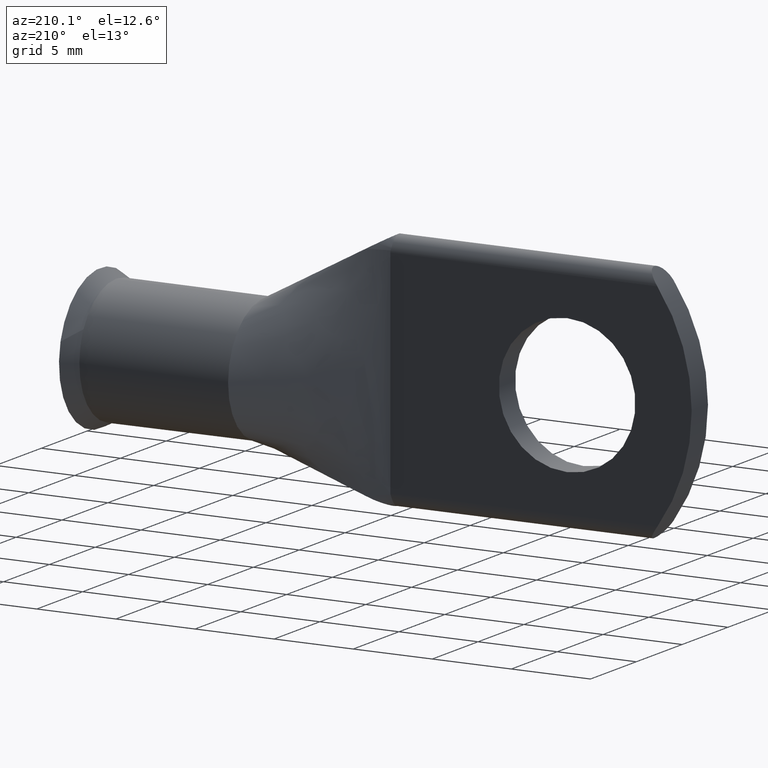
[diagram: clean part render]
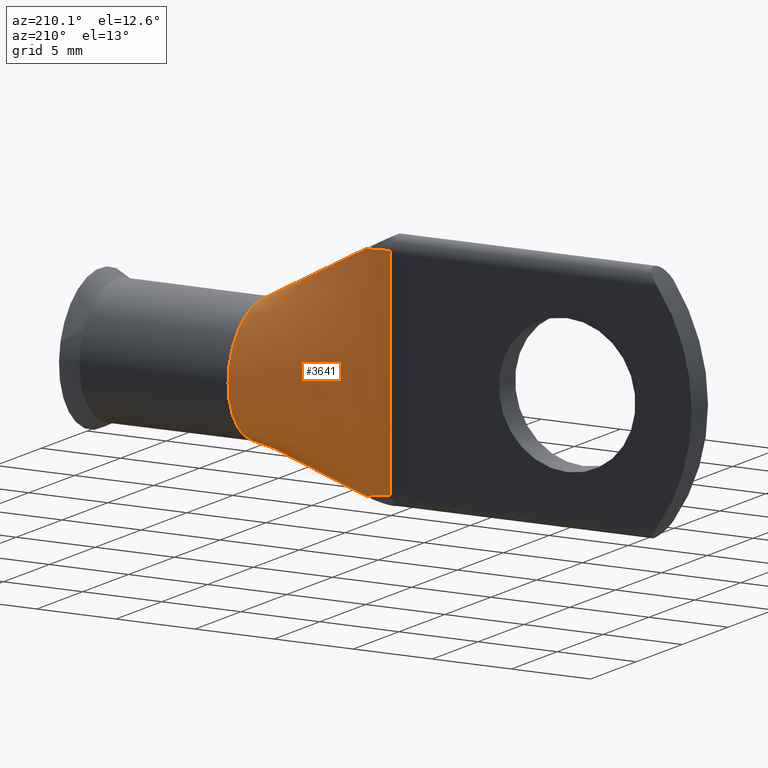
[diagram: same view with one face highlighted and labeled with its STEP entity id]
A machine part, auxiliary view. The second image highlights one B-rep face of the part: STEP entity #3641.
In plain terms, the highlighted face is a freeform B-spline surface patch.
Its self-contained STEP definition (entity closure, byte-faithful):
#12 = CARTESIAN_POINT ( 'NONE',  ( 0.3750000000000001665, 0.03500000000000001027, 0.1750000000000000444 ) ) ;
#15 = ORIENTED_EDGE ( 'NONE', *, *, #964, .T. ) ;
#18 = LINE ( 'NONE', #961, #1896 ) ;
#36 = CARTESIAN_POINT ( 'NONE',  ( 0.3744285130138348960, 0.03468951346466594976, 0.2696516293471368231 ) ) ;
#58 = CARTESIAN_POINT ( 'NONE',  ( 0.3609719128571314828, 0.02757367847859397078, 0.2816567873192118432 ) ) ;
#79 = CARTESIAN_POINT ( 'NONE',  ( 0.3084508794189604330, -0.03344822935351599025, 0.01271493715137337992 ) ) ;
#100 = CARTESIAN_POINT ( 'NONE',  ( 0.6392711925235872172, 0.2814297126761332590, -0.08637188970711148772 ) ) ;
#122 = CARTESIAN_POINT ( 'NONE',  ( 0.6392711925235874393, 0.2372876529877564478, -0.1280733142503861777 ) ) ;
#143 = CARTESIAN_POINT ( 'NONE',  ( 0.3084508794189604886, -0.03310227376827960810, -0.02543079323379219409 ) ) ;
#162 = CARTESIAN_POINT ( 'NONE',  ( 0.3084508794189604886, -0.03176800530091998531, 0.05108427151023640922 ) ) ;
#221 = CARTESIAN_POINT ( 'NONE',  ( 0.6392711925235874393, 0.1554980174777232382, -0.1502651285289114125 ) ) ;
#250 = CARTESIAN_POINT ( 'NONE',  ( 0.3750000000000001665, 0.03500000000000000333, 2.954160186844080923E-17 ) ) ;
#293 = CARTESIAN_POINT ( 'NONE',  ( 0.3609719128571314828, 0.02678284274586828842, 0.2554520356508898637 ) ) ;
#297 = ORIENTED_EDGE ( 'NONE', *, *, #2602, .F. ) ;
#318 = CARTESIAN_POINT ( 'NONE',  ( 0.6280315000000000758, 0.2286841763878710576, 0.1300691485823086413 ) ) ;
#342 = CARTESIAN_POINT ( 'NONE',  ( 0.4226147237752842512, 0.05777007477007943537, -0.2729851026177172457 ) ) ;
#346 = ORIENTED_EDGE ( 'NONE', *, *, #780, .T. ) ;
#408 = CARTESIAN_POINT ( 'NONE',  ( 0.6392711925235875503, 0.3054388719967351395, 0.02328929006677587024 ) ) ;
#431 = CARTESIAN_POINT ( 'NONE',  ( 0.3750000000000001110, 0.03500000000000000333, -0.02500000000000011241 ) ) ;
#452 = CARTESIAN_POINT ( 'NONE',  ( 0.6392711925235875503, 0.3001403989900729985, 0.04569428232067163781 ) ) ;
#470 = CARTESIAN_POINT ( 'NONE',  ( 0.6280315000000000758, 0.2952522466780524990, -0.01168277102172157397 ) ) ;
#490 = CARTESIAN_POINT ( 'NONE',  ( 0.3084508794189604886, -0.03310227376827958728, 0.02543079323379195122 ) ) ;
#528 = CARTESIAN_POINT ( 'NONE',  ( 0.6280314999999999648, 0.2130710006266590684, -0.1392643481345596790 ) ) ;
#546 = CARTESIAN_POINT ( 'NONE',  ( 0.3084508794189604886, -0.01183396530744161221, -0.2159739171587776729 ) ) ;
#564 = CARTESIAN_POINT ( 'NONE',  ( 0.3609719128571314273, 0.02875977725851826261, -0.3251140068592723864 ) ) ;
#586 = CARTESIAN_POINT ( 'NONE',  ( 0.6280315000000000758, 0.1560034568587806980, -0.1564389444062407319 ) ) ;
#613 = CARTESIAN_POINT ( 'NONE',  ( 0.6280315000000000758, 0.1560034568587806425, 0.1564389444062407319 ) ) ;
#634 = CARTESIAN_POINT ( 'NONE',  ( 0.6392711925235874393, 0.1749023847327069170, 0.1495946539034521960 ) ) ;
#655 = CARTESIAN_POINT ( 'NONE',  ( 0.3750000000000001665, 0.03500000000000000333, 0.3163056098330738197 ) ) ;
#696 = CARTESIAN_POINT ( 'NONE',  ( 0.3750000000000001665, 0.03500000000000000333, 0.3054352032776913584 ) ) ;
#718 = CARTESIAN_POINT ( 'NONE',  ( 0.3750000000000001110, 0.03500000000000001027, 0.09999999999999999167 ) ) ;
#744 = CARTESIAN_POINT ( 'NONE',  ( 0.3750000000000001110, 0.03500000000000000333, -0.05000000000000007910 ) ) ;
#766 = CARTESIAN_POINT ( 'NONE',  ( 0.6392711925235874393, 0.3001403989900729985, -0.04569428232067161005 ) ) ;
#780 = EDGE_CURVE ( 'NONE', #3628, #3214, #1439, .T. ) ;
#791 = CARTESIAN_POINT ( 'NONE',  ( 0.3084508794189604886, -0.03176800530091998531, -0.05108427151023654800 ) ) ;
#809 = CARTESIAN_POINT ( 'NONE',  ( 0.3084508794189604886, -0.02705625557227996428, -0.1034318487252151864 ) ) ;
#819 = DIRECTION ( 'NONE',  ( 0.000000000000000000, 0.000000000000000000, -1.000000000000000000 ) ) ;
#829 = CARTESIAN_POINT ( 'NONE',  ( 0.3609719128571314273, 0.02860370431003544586, -0.3193956834773739595 ) ) ;
#836 = VERTEX_POINT ( 'NONE', #3655 ) ;
#932 = CARTESIAN_POINT ( 'NONE',  ( 0.3750000000000001110, 0.03500000000000000333, -0.2665889140773575749 ) ) ;
#956 = CARTESIAN_POINT ( 'NONE',  ( 0.6280314999999999648, 0.2130710006266591794, 0.1392643481345597067 ) ) ;
#961 = CARTESIAN_POINT ( 'NONE',  ( 0.5015157500000001489, 0.09550172842939032292, 0.2282194722031203882 ) ) ;
#964 = EDGE_CURVE ( 'NONE', #3383, #3628, #1702, .T. ) ;
#976 = CARTESIAN_POINT ( 'NONE',  ( 0.3750000000000001665, 0.03500000000000000333, -0.2649999999999999578 ) ) ;
#979 = ORIENTED_EDGE ( 'NONE', *, *, #2973, .T. ) ;
#1021 = CARTESIAN_POINT ( 'NONE',  ( 0.3084508794189605996, 0.004656030033588488132, 0.3513142396968123027 ) ) ;
#1045 = CARTESIAN_POINT ( 'NONE',  ( 0.3084508794189604330, -0.03344822935351599719, -0.01271493715137369737 ) ) ;
#1064 = CARTESIAN_POINT ( 'NONE',  ( 0.3084508794189604886, -0.03078077872360815426, 0.06402329472265844146 ) ) ;
#1086 = CARTESIAN_POINT ( 'NONE',  ( 0.6280315000000000758, 0.1560046757007648444, 0.1564496264679147985 ) ) ;
#1090 = CARTESIAN_POINT ( 'NONE',  ( 0.3750000000000001110, 0.03500000000000000333, -0.1000000000000000749 ) ) ;
#1112 = CARTESIAN_POINT ( 'NONE',  ( 0.6280315000000000758, 0.2888637383303467865, -0.04587740838275537747 ) ) ;
#1130 = CARTESIAN_POINT ( 'NONE',  ( 0.3609719128571314273, 0.02191897724075868650, -0.1007234096041861315 ) ) ;
#1170 = CARTESIAN_POINT ( 'NONE',  ( 0.3084508794189604886, 0.004656030162328464277, -0.3513142408754055257 ) ) ;
#1172 = VERTEX_POINT ( 'NONE', #1086 ) ;
#1179 = DIRECTION ( 'NONE',  ( -0.000000000000000000, 0.000000000000000000, 1.000000000000000000 ) ) ;
#1191 = CARTESIAN_POINT ( 'NONE',  ( 0.3750000000000001110, 0.03500000000000000333, -0.3054352037502193751 ) ) ;
#1212 = CARTESIAN_POINT ( 'NONE',  ( 0.6392711925235874393, 0.1749023847327069447, -0.1495946539034522238 ) ) ;
#1232 = CARTESIAN_POINT ( 'NONE',  ( 0.3609719128571314273, 0.02757367847859396731, -0.2816567873192117322 ) ) ;
#1274 = CARTESIAN_POINT ( 'NONE',  ( 0.3744285130138731432, 0.03468951346468684277, -0.2696516293471389880 ) ) ;
#1281 = CARTESIAN_POINT ( 'NONE',  ( 0.3084508794189605996, 0.005396438648052643595, 0.3580925598711649505 ) ) ;
#1327 = CARTESIAN_POINT ( 'NONE',  ( 0.3084508794189605996, 0.003915621419124354352, 0.3445359195224593774 ) ) ;
#1347 = FACE_OUTER_BOUND ( 'NONE', #4101, .T. ) ;
#1368 = CARTESIAN_POINT ( 'NONE',  ( 0.6280315000000000758, 0.1832169026021350233, 0.1516589543001644891 ) ) ;
#1392 = CARTESIAN_POINT ( 'NONE',  ( 0.6280315000000002978, 0.2939368624941375852, 0.02336204810545149460 ) ) ;
#1415 = CARTESIAN_POINT ( 'NONE',  ( 0.3750000000000001110, 0.03500000000000001027, 0.1250000000000000278 ) ) ;
#1435 = CARTESIAN_POINT ( 'NONE',  ( 0.6392711925235874393, 0.2675538943265995950, -0.1030268511502715340 ) ) ;
#1439 = B_SPLINE_CURVE_WITH_KNOTS ( 'NONE', 3,
 ( #2756, #2069, #1824, #1499 ),
 .UNSPECIFIED., .F., .F.,
 ( 4, 4 ),
 ( 7.739641984483123459E-15, 0.001359727221975469934 ),
 .UNSPECIFIED. ) ;
#1454 = CARTESIAN_POINT ( 'NONE',  ( 0.6280315000000002978, 0.2888637383303467865, 0.04587740838275539829 ) ) ;
#1471 = CARTESIAN_POINT ( 'NONE',  ( 0.3609719128571313718, 0.02057159406822045219, 0.01254530724167914751 ) ) ;
#1491 = CARTESIAN_POINT ( 'NONE',  ( 0.3084508794189604886, -0.0002304032166537372237, -0.3065797398089135095 ) ) ;
#1499 = CARTESIAN_POINT ( 'NONE',  ( 0.4226147237754311337, 0.05777007477014962922, 0.2729851026176340900 ) ) ;
#1507 = CARTESIAN_POINT ( 'NONE',  ( 0.6280315000000000758, 0.1475579635006703805, -0.1574242519646869565 ) ) ;
#1527 = CARTESIAN_POINT ( 'NONE',  ( 0.3084508794189604886, 0.003915621483494333317, -0.3445359201117559333 ) ) ;
#1546 = CARTESIAN_POINT ( 'NONE',  ( 0.3750000000000001110, 0.03500000000000000333, -0.2500000000000000555 ) ) ;
#1568 = CARTESIAN_POINT ( 'NONE',  ( 0.3744285130138731432, 0.03468951346468684277, -0.2696516293471389880 ) ) ;
#1599 = CARTESIAN_POINT ( 'NONE',  ( 0.3084508794189605996, -0.003982120895689612340, 0.2758644086145159990 ) ) ;
#1647 = CARTESIAN_POINT ( 'NONE',  ( 0.3084508794189605996, -0.0002304032166537329682, 0.3065797398089135650 ) ) ;
#1688 = CARTESIAN_POINT ( 'NONE',  ( 0.3609719128571314828, 0.02829155841306981237, 0.3079590367135771611 ) ) ;
#1702 = B_SPLINE_CURVE_WITH_KNOTS ( 'NONE', 3,
 ( #2019, #3672, #3354, #1976 ),
 .UNSPECIFIED., .F., .F.,
 ( 4, 4 ),
 ( 3.778891758601221387E-17, 0.0001192222543883162029 ),
 .UNSPECIFIED. ) ;
#1712 = CARTESIAN_POINT ( 'NONE',  ( 0.3084508794189604886, -0.02356202867722666586, 0.1305333073513685882 ) ) ;
#1733 = CARTESIAN_POINT ( 'NONE',  ( 0.3750000000000001110, 0.03500000000000000333, -0.06250000000000008327 ) ) ;
#1752 = CARTESIAN_POINT ( 'NONE',  ( 0.3750000000000001110, 0.03500000000000000333, 0.02499999999999993547 ) ) ;
#1775 = CARTESIAN_POINT ( 'NONE',  ( 0.3609719128571314273, 0.02064451907541642664, -0.02509080818756788747 ) ) ;
#1793 = CARTESIAN_POINT ( 'NONE',  ( 0.6280314999999999648, 0.2576631671442923266, 0.1039613890183137684 ) ) ;
#1812 = CARTESIAN_POINT ( 'NONE',  ( 0.6280314999999999648, 0.1832169026021350511, -0.1516589543001644891 ) ) ;
#1824 = CARTESIAN_POINT ( 'NONE',  ( 0.4061018987848284967, 0.05114175158601189097, 0.2716408433011661683 ) ) ;
#1834 = CARTESIAN_POINT ( 'NONE',  ( 0.3084508794189604886, 0.005396438841162594369, -0.3580925616390548405 ) ) ;
#1894 = CARTESIAN_POINT ( 'NONE',  ( 0.3084508794189604886, -0.003982120895689621014, -0.2758644086145159990 ) ) ;
#1896 = VECTOR ( 'NONE', #3958, 39.37007874015748143 ) ;
#1946 = CARTESIAN_POINT ( 'NONE',  ( 0.3084508794189605996, -0.01183396530744164690, 0.2159739171587776729 ) ) ;
#1968 = CARTESIAN_POINT ( 'NONE',  ( 0.6392711925235874393, 0.1554980179889585701, 0.1502651285112468205 ) ) ;
#1973 = CARTESIAN_POINT ( 'NONE',  ( 0.4226147237754311337, 0.05777007477014962922, 0.2729851026176340900 ) ) ;
#1976 = CARTESIAN_POINT ( 'NONE',  ( 0.3744285130138348960, 0.03468951346466594976, 0.2696516293471368231 ) ) ;
#1988 = CARTESIAN_POINT ( 'NONE',  ( 0.6392711925235874393, 0.1525578038164677463, 0.1503667210532847187 ) ) ;
#2006 = DIRECTION ( 'NONE',  ( -0.8030660101565660902, -0.3840382059733004616, -0.4556310345927094274 ) ) ;
#2011 = CARTESIAN_POINT ( 'NONE',  ( 0.3609719128571314828, 0.02844763134798388923, 0.3136773595983334273 ) ) ;
#2014 = ORIENTED_EDGE ( 'NONE', *, *, #3182, .T. ) ;
#2019 = CARTESIAN_POINT ( 'NONE',  ( 0.3750000000000001665, 0.03500000000000000333, 0.2650000000000000133 ) ) ;
#2031 = CARTESIAN_POINT ( 'NONE',  ( 0.6280315000000000758, 0.2851101286730578499, 0.05670816465715749349 ) ) ;
#2056 = CARTESIAN_POINT ( 'NONE',  ( 0.3609719128571314273, 0.02092577349574057874, -0.05022855681787125048 ) ) ;
#2069 = CARTESIAN_POINT ( 'NONE',  ( 0.3901049120790470726, 0.04321658171745716703, 0.2705663635148192747 ) ) ;
#2077 = CARTESIAN_POINT ( 'NONE',  ( 0.6392711925235874393, 0.2962200534979117506, 0.05645089056914554676 ) ) ;
#2095 = CARTESIAN_POINT ( 'NONE',  ( 0.3609719128571314273, 0.02064451907541643011, 0.02509080818756769665 ) ) ;
#2112 = CARTESIAN_POINT ( 'NONE',  ( 0.6280315000000000758, 0.2576631671442923266, -0.1039613890183137407 ) ) ;
#2130 = CARTESIAN_POINT ( 'NONE',  ( 0.3750000000000001110, 0.03500000000000000333, -0.1750000000000000722 ) ) ;
#2136 = ORIENTED_EDGE ( 'NONE', *, *, #4000, .T. ) ;
#2148 = CARTESIAN_POINT ( 'NONE',  ( 0.6392711925235872172, 0.1898007169179276865, -0.1472906321105786065 ) ) ;
#2166 = CARTESIAN_POINT ( 'NONE',  ( 0.6280315000000000758, 0.1503731279533738197, -0.1570958161118715390 ) ) ;
#2183 = CARTESIAN_POINT ( 'NONE',  ( 0.3609719128571314273, 0.02426213335270982832, -0.1774909700930148160 ) ) ;
#2250 = CARTESIAN_POINT ( 'NONE',  ( 0.3609719128571314828, 0.02512772909930741094, 0.2033671895279731967 ) ) ;
#2290 = CARTESIAN_POINT ( 'NONE',  ( 0.6280315000000000758, 0.1475579642349085230, 0.1574242518790257839 ) ) ;
#2311 = CARTESIAN_POINT ( 'NONE',  ( 0.6392711925235874393, 0.1584382321614494216, 0.1501635359692089222 ) ) ;
#2332 = CARTESIAN_POINT ( 'NONE',  ( 0.6280315000000004089, 0.2939368624941376962, -0.02336204810545148072 ) ) ;
#2351 = CARTESIAN_POINT ( 'NONE',  ( 0.3609719128571314828, 0.02426213335270983179, 0.1774909700930147882 ) ) ;
#2378 = CARTESIAN_POINT ( 'NONE',  ( 0.3750000000000001110, 0.03500000000000000333, -0.1250000000000000555 ) ) ;
#2400 = CARTESIAN_POINT ( 'NONE',  ( 0.3750000000000000555, 0.03500000000000000333, -0.01250000000000013600 ) ) ;
#2423 = CARTESIAN_POINT ( 'NONE',  ( 0.6392711925235872172, 0.2675538943265995395, 0.1030268511502715617 ) ) ;
#2433 = CIRCLE ( 'NONE', #2637, 0.1575000000000000011 ) ;
#2463 = CARTESIAN_POINT ( 'NONE',  ( 0.6392711925235874393, 0.1525578030496146931, -0.1503667210797816067 ) ) ;
#2506 = CARTESIAN_POINT ( 'NONE',  ( 0.6392711925235874393, 0.1613784463339403286, -0.1500619434271710517 ) ) ;
#2525 = CARTESIAN_POINT ( 'NONE',  ( 0.3609719128571314273, 0.02512772909930741094, -0.2033671895279731967 ) ) ;
#2573 = CARTESIAN_POINT ( 'NONE',  ( 0.6392711925235874393, 0.1898007169179276588, 0.1472906321105786065 ) ) ;
#2593 = CARTESIAN_POINT ( 'NONE',  ( 0.3609719128571314828, 0.02860370428289796263, 0.3193956824830897490 ) ) ;
#2602 = EDGE_CURVE ( 'NONE', #4082, #1172, #2433, .T. ) ;
#2612 = CARTESIAN_POINT ( 'NONE',  ( 0.4226147237752842512, 0.05777007477007943537, -0.2729851026177172457 ) ) ;
#2617 = CARTESIAN_POINT ( 'NONE',  ( 0.6392711925235874393, 0.1613784463339402730, 0.1500619434271710240 ) ) ;
#2636 = CARTESIAN_POINT ( 'NONE',  ( 0.3750000000000001665, 0.03500000000000000333, 0.3108704065553826168 ) ) ;
#2637 = AXIS2_PLACEMENT_3D ( 'NONE', #3459, #3404, #819 ) ;
#2641 = ORIENTED_EDGE ( 'NONE', *, *, #3834, .T. ) ;
#2681 = CARTESIAN_POINT ( 'NONE',  ( 0.6392711925235876613, 0.3054388719967352506, -0.02328929006677584596 ) ) ;
#2704 = CARTESIAN_POINT ( 'NONE',  ( 0.6280314999999999648, 0.2709488344059506892, -0.08695150554759295547 ) ) ;
#2727 = CARTESIAN_POINT ( 'NONE',  ( 0.6280315000000000758, 0.2286841763878710021, -0.1300691485823086413 ) ) ;
#2746 = CARTESIAN_POINT ( 'NONE',  ( 0.3609719128571314273, 0.02113387392344527951, -0.06282109982712257013 ) ) ;
#2756 = CARTESIAN_POINT ( 'NONE',  ( 0.3744285130138348960, 0.03468951346466594976, 0.2696516293471368231 ) ) ;
#2766 = CARTESIAN_POINT ( 'NONE',  ( 0.3609719128571314273, 0.02844763136155262565, -0.3136773600954754770 ) ) ;
#2783 = CARTESIAN_POINT ( 'NONE',  ( 0.6392711925235874393, 0.1584382319058317834, -0.1501635359780412460 ) ) ;
#2805 = CARTESIAN_POINT ( 'NONE',  ( 0.3750000000000001110, 0.03500000000000000333, -0.2750000000000000222 ) ) ;
#2823 = LINE ( 'NONE', #3159, #3621 ) ;
#2844 = CARTESIAN_POINT ( 'NONE',  ( 0.3750000000000001110, 0.03500000000000000333, -0.2000000000000000389 ) ) ;
#2895 = CARTESIAN_POINT ( 'NONE',  ( 0.6392711925235872172, 0.2209809379048682798, 0.1365664624871711641 ) ) ;
#2940 = CARTESIAN_POINT ( 'NONE',  ( 0.3750000000000001665, 0.03500000000000001027, 0.2500000000000000555 ) ) ;
#2973 = EDGE_CURVE ( 'NONE', #836, #3383, #4107, .T. ) ;
#2986 = CARTESIAN_POINT ( 'NONE',  ( 0.3750000000000001665, 0.03500000000000000333, 0.2750000000000000777 ) ) ;
#3011 = CARTESIAN_POINT ( 'NONE',  ( 0.3750000000000000555, 0.03500000000000000333, 0.01249999999999988794 ) ) ;
#3034 = CARTESIAN_POINT ( 'NONE',  ( 0.6392711925235874393, 0.3068126857191762480, -0.01164646960297641143 ) ) ;
#3054 = CARTESIAN_POINT ( 'NONE',  ( 0.3084508794189604886, -0.02356202867722669708, -0.1305333073513686437 ) ) ;
#3079 = CARTESIAN_POINT ( 'NONE',  ( 0.6280315000000002978, 0.2851101286730579054, -0.05670816465715747962 ) ) ;
#3100 = CARTESIAN_POINT ( 'NONE',  ( 0.3750000000000001110, 0.03500000000000000333, 0.06249999999999997918 ) ) ;
#3119 = CARTESIAN_POINT ( 'NONE',  ( 0.3609719128571314273, 0.02678284274586828148, -0.2554520356508898637 ) ) ;
#3159 = CARTESIAN_POINT ( 'NONE',  ( 0.5015157500000001489, 0.09550172842939033679, -0.2282194722031203327 ) ) ;
#3179 = B_SPLINE_CURVE_WITH_KNOTS ( 'NONE', 3,
 ( #3259, #3911, #932, #976 ),
 .UNSPECIFIED., .F., .F.,
 ( 4, 4 ),
 ( 0.002797248650388587179, 0.002915338553677062489 ),
 .UNSPECIFIED. ) ;
#3182 = EDGE_CURVE ( 'NONE', #3214, #1172, #18, .T. ) ;
#3199 = VECTOR ( 'NONE', #1179, 39.37007874015748143 ) ;
#3205 = CARTESIAN_POINT ( 'NONE',  ( 0.3750000000000001110, 0.03500000000000000333, -0.2999999999999999334 ) ) ;
#3214 = VERTEX_POINT ( 'NONE', #1973 ) ;
#3259 = CARTESIAN_POINT ( 'NONE',  ( 0.3744285130138731432, 0.03468951346468684277, -0.2696516293471389880 ) ) ;
#3281 = CARTESIAN_POINT ( 'NONE',  ( 0.6280315000000000758, 0.1689522099418170886, 0.1549282565465531503 ) ) ;
#3296 = CARTESIAN_POINT ( 'NONE',  ( 0.6280315000000000758, 0.1560046571253726755, -0.1564494845290497205 ) ) ;
#3324 = CARTESIAN_POINT ( 'NONE',  ( 0.3750000000000001665, 0.03500000000000000333, 0.3000000000000000999 ) ) ;
#3345 = CARTESIAN_POINT ( 'NONE',  ( 0.3084508794189604886, -0.02705625557227995734, 0.1034318487252151031 ) ) ;
#3354 = CARTESIAN_POINT ( 'NONE',  ( 0.3748050896855394942, 0.03489242376998440143, 0.2681384262857243184 ) ) ;
#3370 = CARTESIAN_POINT ( 'NONE',  ( 0.6392711925235875503, 0.2962200534979118061, -0.05645089056914552594 ) ) ;
#3383 = VERTEX_POINT ( 'NONE', #3454 ) ;
#3393 = CARTESIAN_POINT ( 'NONE',  ( 0.3084508794189605996, -0.01594034382705621089, 0.1868171399561111001 ) ) ;
#3404 = DIRECTION ( 'NONE',  ( 1.000000000000000000, 0.000000000000000000, 0.000000000000000000 ) ) ;
#3413 = CARTESIAN_POINT ( 'NONE',  ( 0.3609719128571314273, 0.02191897724075869691, 0.1007234096041860483 ) ) ;
#3430 = CARTESIAN_POINT ( 'NONE',  ( 0.3609719128571314273, 0.02092577349574057874, 0.05022855681787113946 ) ) ;
#3432 = ORIENTED_EDGE ( 'NONE', *, *, #3507, .T. ) ;
#3454 = CARTESIAN_POINT ( 'NONE',  ( 0.3750000000000001665, 0.03500000000000000333, 0.2650000000000000133 ) ) ;
#3459 = CARTESIAN_POINT ( 'NONE',  ( 0.6280315000000000758, 0.1377522466780526089, 0.000000000000000000 ) ) ;
#3507 = EDGE_CURVE ( 'NONE', #3895, #836, #3179, .T. ) ;
#3512 = CARTESIAN_POINT ( 'NONE',  ( 0.3609719128571314273, 0.02829155841306981237, -0.3079590367135769391 ) ) ;
#3522 = VERTEX_POINT ( 'NONE', #342 ) ;
#3561 = CARTESIAN_POINT ( 'NONE',  ( 0.6280315000000000758, 0.1503731284428659054, 0.1570958160547641091 ) ) ;
#3583 = CARTESIAN_POINT ( 'NONE',  ( 0.3084508794189605996, 0.003175212804660220139, 0.3377575993481067296 ) ) ;
#3600 = CARTESIAN_POINT ( 'NONE',  ( 0.3901049120792656200, 0.04321658171757469108, -0.2705663635148321533 ) ) ;
#3620 = CARTESIAN_POINT ( 'NONE',  ( 0.4061018742444573726, 0.05114180893306764092, -0.2716408619831082172 ) ) ;
#3621 = VECTOR ( 'NONE', #2006, 39.37007874015748854 ) ;
#3626 = CARTESIAN_POINT ( 'NONE',  ( 0.3609719128571314828, 0.02875977721781204297, 0.3251140053678460151 ) ) ;
#3628 = VERTEX_POINT ( 'NONE', #36 ) ;
#3641 = ADVANCED_FACE ( 'NONE', ( #1347 ), #3884, .T. ) ;
#3647 = CARTESIAN_POINT ( 'NONE',  ( 0.6280315000000000758, 0.1531882926508232601, 0.1567673802305024344 ) ) ;
#3655 = CARTESIAN_POINT ( 'NONE',  ( 0.3750000000000001665, 0.03500000000000000333, -0.2649999999999999578 ) ) ;
#3663 = CARTESIAN_POINT ( 'NONE',  ( 0.3609719128571314273, 0.02265553572496995655, 0.1261663823208415136 ) ) ;
#3672 = CARTESIAN_POINT ( 'NONE',  ( 0.3750000000000088263, 0.03500000000002224249, 0.2665889140773635146 ) ) ;
#3684 = CARTESIAN_POINT ( 'NONE',  ( 0.3609719128571314273, 0.02113387392344528992, 0.06282109982712245910 ) ) ;
#3706 = CARTESIAN_POINT ( 'NONE',  ( 0.3609719128571314273, 0.02265553572496994267, -0.1261663823208415691 ) ) ;
#3724 = CARTESIAN_POINT ( 'NONE',  ( 0.6392711925235874393, 0.3068126857191762480, 0.01164646960297643051 ) ) ;
#3742 = CARTESIAN_POINT ( 'NONE',  ( 0.6392711925235872172, 0.2814297126761332590, 0.08637188970711150160 ) ) ;
#3763 = CARTESIAN_POINT ( 'NONE',  ( 0.3084508794189604886, 0.003175212804660220139, -0.3377575993481062855 ) ) ;
#3778 = CARTESIAN_POINT ( 'NONE',  ( 0.3750000000000001110, 0.03500000000000000333, -0.3163056112506583140 ) ) ;
#3834 = EDGE_CURVE ( 'NONE', #4082, #3522, #2823, .T. ) ;
#3838 = CARTESIAN_POINT ( 'NONE',  ( 0.6280315000000000758, 0.1531882924060772588, -0.1567673802590561494 ) ) ;
#3884 = B_SPLINE_SURFACE_WITH_KNOTS ( 'NONE', 3, 1, ( 
 ( #1988, #2290, #655, #3626, #1281 ),
 ( #1968, #3561, #2636, #2593, #1021 ),
 ( #2311, #3647, #696, #2011, #1327 ),
 ( #2617, #613, #3324, #1688, #3583 ),
 ( #634, #3281, #2986, #58, #1647 ),
 ( #2573, #1368, #2940, #293, #1599 ),
 ( #2895, #956, #4206, #2250, #1946 ),
 ( #3931, #318, #12, #2351, #3393 ),
 ( #2423, #1793, #1415, #3663, #1712 ),
 ( #3742, #3994, #718, #3413, #3345 ),
 ( #2077, #2031, #3100, #3684, #1064 ),
 ( #452, #1454, #4061, #3430, #162 ),
 ( #408, #1392, #1752, #2095, #490 ),
 ( #3724, #4020, #3011, #1471, #79 ),
 ( #3034, #470, #2400, #3975, #1045 ),
 ( #2681, #2332, #431, #1775, #143 ),
 ( #766, #1112, #744, #2056, #791 ),
 ( #3370, #3079, #1733, #2746, #4040 ),
 ( #100, #2704, #1090, #1130, #809 ),
 ( #1435, #2112, #2378, #3706, #3054 ),
 ( #122, #2727, #2130, #2183, #4117 ),
 ( #4137, #528, #2844, #2525, #546 ),
 ( #2148, #1812, #1546, #3119, #1894 ),
 ( #1212, #4158, #2805, #1232, #1491 ),
 ( #2506, #586, #3205, #3512, #3763 ),
 ( #2783, #3838, #1191, #2766, #1527 ),
 ( #221, #2166, #4098, #829, #1170 ),
 ( #2463, #1507, #3778, #564, #1834 ) ),
 .UNSPECIFIED., .F., .F., .F.,
 ( 4, 3, 2, 2, 2, 2, 2, 2, 2, 2, 2, 3, 4 ),
 ( 2, 1, 1, 1, 2 ),
 ( -0.02717601638845623321, 0.000000000000000000, 0.1249999999999999167, 0.2499999999999998335, 0.3749999999999997780, 0.4374999999999997780, 0.4999999999999997780, 0.5624999999999998890, 0.6249999999999998890, 0.7499999999999998890, 0.8750000000000000000, 1.000000000000000000, 1.027176018751097430 ),
 ( -0.04442013157882433727, 0.000000000000000000, 1.000000000000000000, 1.055440082135499669, 1.263007256333854134 ),
 .UNSPECIFIED. ) ;
#3895 = VERTEX_POINT ( 'NONE', #1568 ) ;
#3911 = CARTESIAN_POINT ( 'NONE',  ( 0.3748050896855857350, 0.03489242377000967982, -0.2681384262857267609 ) ) ;
#3931 = CARTESIAN_POINT ( 'NONE',  ( 0.6392711925235874393, 0.2372876529877565033, 0.1280733142503861777 ) ) ;
#3944 = B_SPLINE_CURVE_WITH_KNOTS ( 'NONE', 3,
 ( #2612, #3620, #3600, #1274 ),
 .UNSPECIFIED., .F., .F.,
 ( 4, 4 ),
 ( -5.999905580285570016E-08, 0.001359667222924235011 ),
 .UNSPECIFIED. ) ;
#3958 = DIRECTION ( 'NONE',  ( 0.8030660101565659792, 0.3840382059733004061, -0.4556310345927099270 ) ) ;
#3975 = CARTESIAN_POINT ( 'NONE',  ( 0.3609719128571313718, 0.02057159406822044873, -0.01254530724167940946 ) ) ;
#3994 = CARTESIAN_POINT ( 'NONE',  ( 0.6280314999999999648, 0.2709488344059506892, 0.08695150554759298323 ) ) ;
#4000 = EDGE_CURVE ( 'NONE', #3522, #3895, #3944, .T. ) ;
#4020 = CARTESIAN_POINT ( 'NONE',  ( 0.6280315000000000758, 0.2952522466780524990, 0.01168277102172158265 ) ) ;
#4040 = CARTESIAN_POINT ( 'NONE',  ( 0.3084508794189604886, -0.03078077872360818201, -0.06402329472265855248 ) ) ;
#4061 = CARTESIAN_POINT ( 'NONE',  ( 0.3750000000000001110, 0.03500000000000000333, 0.04999999999999998196 ) ) ;
#4082 = VERTEX_POINT ( 'NONE', #3296 ) ;
#4098 = CARTESIAN_POINT ( 'NONE',  ( 0.3750000000000001110, 0.03500000000000000333, -0.3108704075004388723 ) ) ;
#4101 = EDGE_LOOP ( 'NONE', ( #2641, #2136, #3432, #979, #15, #346, #2014, #297 ) ) ;
#4107 = LINE ( 'NONE', #250, #3199 ) ;
#4117 = CARTESIAN_POINT ( 'NONE',  ( 0.3084508794189604886, -0.01594034382705620742, -0.1868171399561111279 ) ) ;
#4137 = CARTESIAN_POINT ( 'NONE',  ( 0.6392711925235872172, 0.2209809379048681688, -0.1365664624871711363 ) ) ;
#4158 = CARTESIAN_POINT ( 'NONE',  ( 0.6280315000000000758, 0.1689522099418171441, -0.1549282565465531780 ) ) ;
#4206 = CARTESIAN_POINT ( 'NONE',  ( 0.3750000000000001665, 0.03500000000000001027, 0.2000000000000000389 ) ) ;